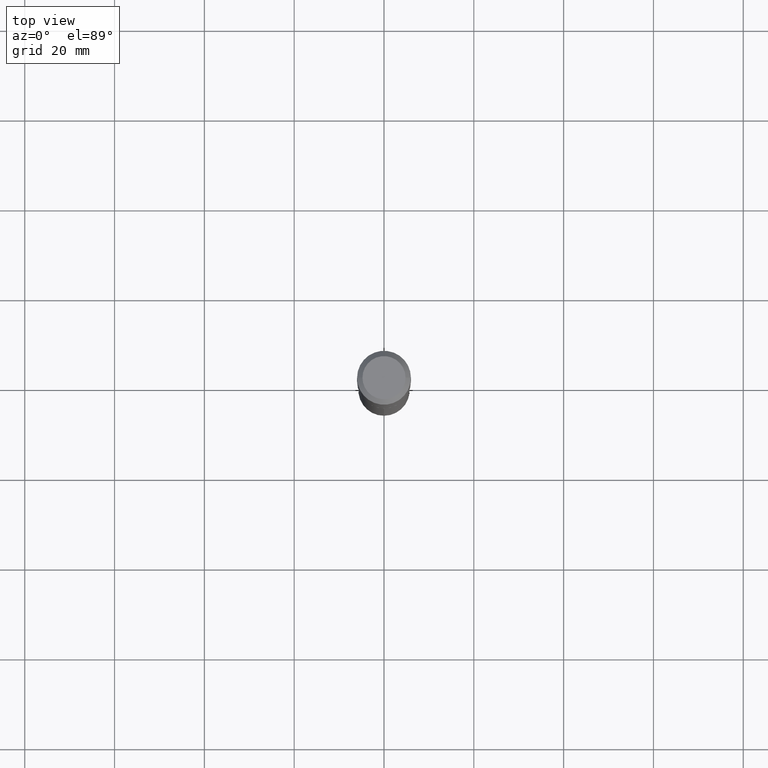
[diagram: clean part render]
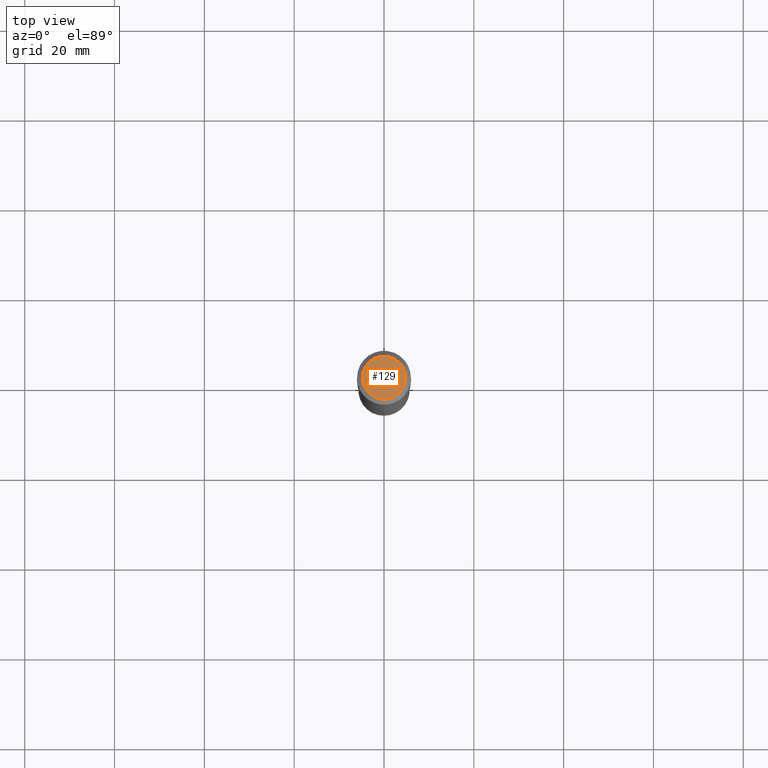
[diagram: same view with one face highlighted and labeled with its STEP entity id]
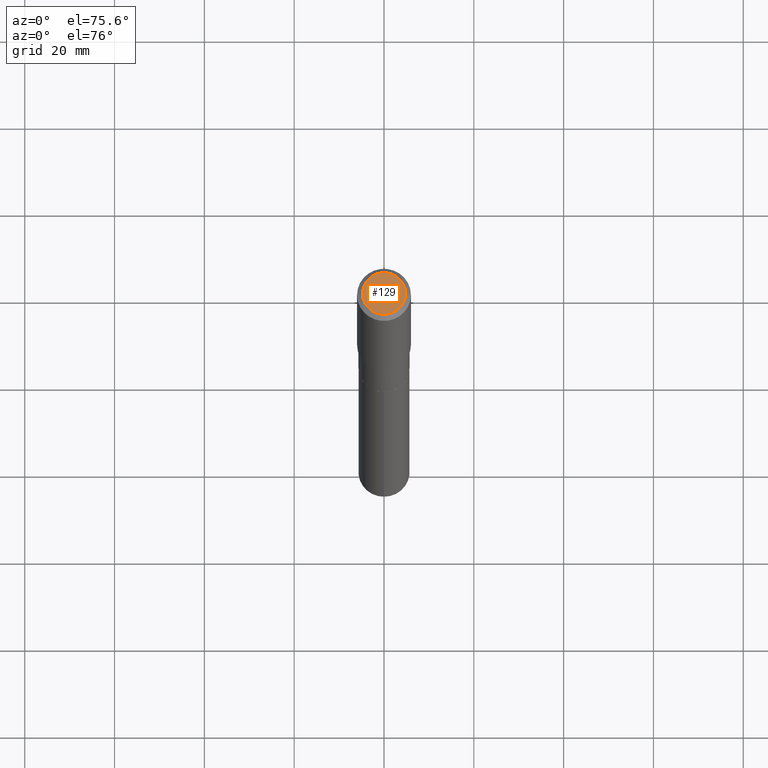
[diagram: same view with one face highlighted and labeled with its STEP entity id]
A machine part, top view. The second image highlights one B-rep face of the part: STEP entity #129.
A second angle (auxiliary view) of the same face is appended — the face is thin or edge-on in the first view.
In plain terms, the highlighted planar face has unit normal (0, -0, -1).
Its self-contained STEP definition (entity closure, byte-faithful):
#2 = DIRECTION ( 'NONE',  ( 1.000000000000000000, -6.982962677686266711E-15, 4.876185090822587894E-29 ) ) ;
#5 = AXIS2_PLACEMENT_3D ( 'NONE', #245, #356, #468 ) ;
#13 = DIRECTION ( 'NONE',  ( -2.445468806185136597E-29, 3.491481338843145583E-15, 1.000000000000000000 ) ) ;
#22 = DIRECTION ( 'NONE',  ( 1.000000000000000000, -6.982962677686266711E-15, 4.876185090822587894E-29 ) ) ;
#29 = ORIENTED_EDGE ( 'NONE', *, *, #443, .T. ) ;
#33 = CIRCLE ( 'NONE', #485, 0.1889600000000000168 ) ;
#49 = CARTESIAN_POINT ( 'NONE',  ( 0.1889600000000000168, -1.540873453589747738E-15, 3.855188123725863225E-18 ) ) ;
#113 = VERTEX_POINT ( 'NONE', #49 ) ;
#123 = CARTESIAN_POINT ( 'NONE',  ( -9.427742298522546243E-47, 1.346031739168365344E-32, 3.855188123715862256E-18 ) ) ;
#129 = ADVANCED_FACE ( 'NONE', ( #281 ), #202, .F. ) ;
#202 = PLANE ( 'NONE',  #5 ) ;
#212 = DIRECTION ( 'NONE',  ( -2.445468806185136597E-29, 3.491481338843145583E-15, 1.000000000000000000 ) ) ;
#220 = EDGE_CURVE ( 'NONE', #113, #344, #33, .T. ) ;
#245 = CARTESIAN_POINT ( 'NONE',  ( -4.713871149261273121E-47, 6.730158695841826722E-33, 1.927594061857931128E-18 ) ) ;
#248 = CARTESIAN_POINT ( 'NONE',  ( -9.427742298522546243E-47, 1.346031739168365344E-32, 3.855188123715862256E-18 ) ) ;
#281 = FACE_OUTER_BOUND ( 'NONE', #324, .T. ) ;
#322 = AXIS2_PLACEMENT_3D ( 'NONE', #248, #212, #22 ) ;
#323 = CARTESIAN_POINT ( 'NONE',  ( -0.1889600000000000168, 1.401969416799070942E-15, 3.855188123706346622E-18 ) ) ;
#324 = EDGE_LOOP ( 'NONE', ( #29, #405 ) ) ;
#344 = VERTEX_POINT ( 'NONE', #323 ) ;
#356 = DIRECTION ( 'NONE',  ( 2.438088387897960049E-29, -3.491481338843145188E-15, -1.000000000000000000 ) ) ;
#405 = ORIENTED_EDGE ( 'NONE', *, *, #220, .T. ) ;
#443 = EDGE_CURVE ( 'NONE', #344, #113, #477, .T. ) ;
#468 = DIRECTION ( 'NONE',  ( -1.000000000000000000, 6.982962677686265922E-15, -4.876176775795935793E-29 ) ) ;
#477 = CIRCLE ( 'NONE', #322, 0.1889600000000000168 ) ;
#485 = AXIS2_PLACEMENT_3D ( 'NONE', #123, #13, #2 ) ;